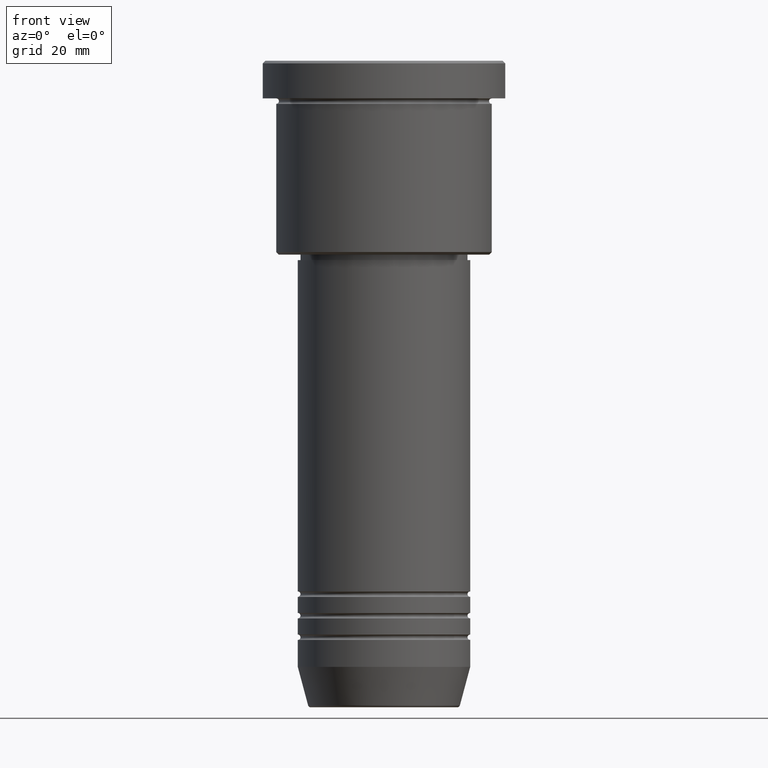
[diagram: clean part render]
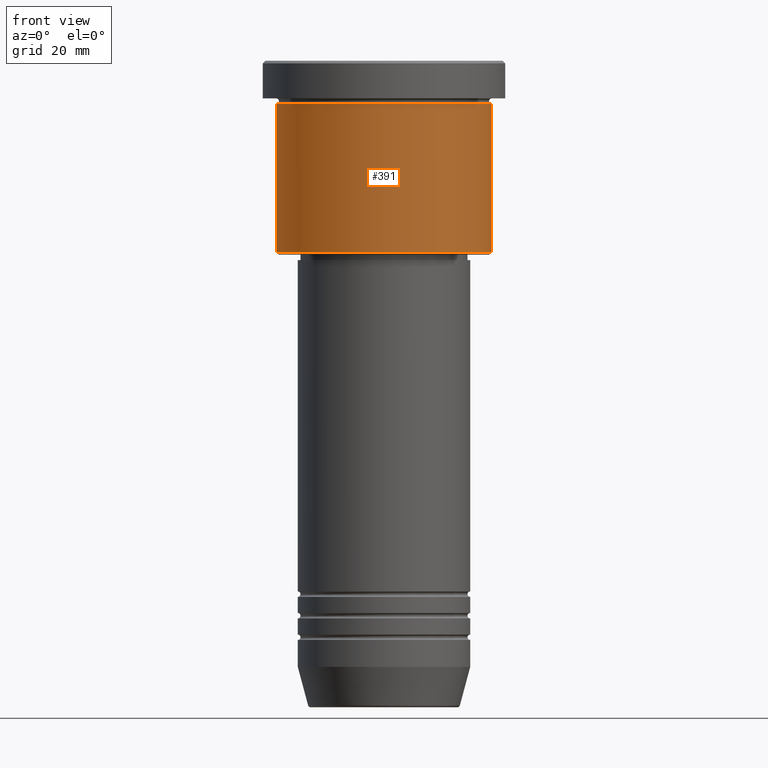
[diagram: same view with one face highlighted and labeled with its STEP entity id]
A machine part, front view. The second image highlights one B-rep face of the part: STEP entity #391.
In plain terms, the highlighted cylindrical surface (partial cylindrical patch) has radius 20 mm, axis along (-0, -0, 1).
Its self-contained STEP definition (entity closure, byte-faithful):
#16 = VERTEX_POINT ( 'NONE', #1168 ) ;
#74 = CARTESIAN_POINT ( 'NONE',  ( 20.00000000000000355, 0.000000000000000000, -35.49999999999997868 ) ) ;
#92 = DIRECTION ( 'NONE',  ( -0.000000000000000000, -0.000000000000000000, 1.000000000000000000 ) ) ;
#114 = DIRECTION ( 'NONE',  ( -1.000000000000000000, 0.000000000000000000, 0.000000000000000000 ) ) ;
#125 = ORIENTED_EDGE ( 'NONE', *, *, #613, .F. ) ;
#134 = VERTEX_POINT ( 'NONE', #731 ) ;
#175 = LINE ( 'NONE', #536, #1024 ) ;
#192 = CARTESIAN_POINT ( 'NONE',  ( 0.000000000000000000, 0.000000000000000000, 0.000000000000000000 ) ) ;
#193 = LINE ( 'NONE', #553, #406 ) ;
#204 = CIRCLE ( 'NONE', #1023, 20.00000000000000000 ) ;
#237 = EDGE_CURVE ( 'NONE', #16, #1034, #421, .T. ) ;
#391 = ADVANCED_FACE ( 'NONE', ( #640 ), #1010, .T. ) ;
#397 = VERTEX_POINT ( 'NONE', #770 ) ;
#406 = VECTOR ( 'NONE', #803, 1000.000000000000000 ) ;
#421 = CIRCLE ( 'NONE', #1058, 20.00000000000000355 ) ;
#472 = CARTESIAN_POINT ( 'NONE',  ( 0.000000000000000000, 0.000000000000000000, -35.49999999999997868 ) ) ;
#536 = CARTESIAN_POINT ( 'NONE',  ( 20.00000000000000355, 0.000000000000000000, 0.000000000000000000 ) ) ;
#552 = DIRECTION ( 'NONE',  ( -0.000000000000000000, -0.000000000000000000, 1.000000000000000000 ) ) ;
#553 = CARTESIAN_POINT ( 'NONE',  ( -20.00000000000000355, 2.449293598294706907E-15, 0.000000000000000000 ) ) ;
#576 = AXIS2_PLACEMENT_3D ( 'NONE', #192, #552, #1057 ) ;
#613 = EDGE_CURVE ( 'NONE', #134, #397, #204, .T. ) ;
#620 = ORIENTED_EDGE ( 'NONE', *, *, #237, .T. ) ;
#640 = FACE_OUTER_BOUND ( 'NONE', #669, .T. ) ;
#669 = EDGE_LOOP ( 'NONE', ( #1152, #620, #855, #125 ) ) ;
#731 = CARTESIAN_POINT ( 'NONE',  ( -20.00000000000000000, 2.449293598294706513E-15, -7.999999999999994671 ) ) ;
#770 = CARTESIAN_POINT ( 'NONE',  ( 20.00000000000000000, 0.000000000000000000, -7.999999999999994671 ) ) ;
#803 = DIRECTION ( 'NONE',  ( -0.000000000000000000, -0.000000000000000000, 1.000000000000000000 ) ) ;
#855 = ORIENTED_EDGE ( 'NONE', *, *, #913, .T. ) ;
#908 = DIRECTION ( 'NONE',  ( 1.000000000000000000, 0.000000000000000000, 0.000000000000000000 ) ) ;
#913 = EDGE_CURVE ( 'NONE', #1034, #397, #175, .T. ) ;
#929 = DIRECTION ( 'NONE',  ( -0.000000000000000000, -0.000000000000000000, 1.000000000000000000 ) ) ;
#1003 = DIRECTION ( 'NONE',  ( -0.000000000000000000, -0.000000000000000000, 1.000000000000000000 ) ) ;
#1010 = CYLINDRICAL_SURFACE ( 'NONE', #576, 20.00000000000000355 ) ;
#1022 = EDGE_CURVE ( 'NONE', #16, #134, #193, .T. ) ;
#1023 = AXIS2_PLACEMENT_3D ( 'NONE', #1089, #1003, #908 ) ;
#1024 = VECTOR ( 'NONE', #92, 1000.000000000000000 ) ;
#1034 = VERTEX_POINT ( 'NONE', #74 ) ;
#1057 = DIRECTION ( 'NONE',  ( 1.000000000000000000, 0.000000000000000000, 0.000000000000000000 ) ) ;
#1058 = AXIS2_PLACEMENT_3D ( 'NONE', #472, #929, #114 ) ;
#1089 = CARTESIAN_POINT ( 'NONE',  ( 0.000000000000000000, 0.000000000000000000, -7.999999999999994671 ) ) ;
#1152 = ORIENTED_EDGE ( 'NONE', *, *, #1022, .F. ) ;
#1168 = CARTESIAN_POINT ( 'NONE',  ( -20.00000000000000355, 2.449293598294706907E-15, -35.49999999999997868 ) ) ;